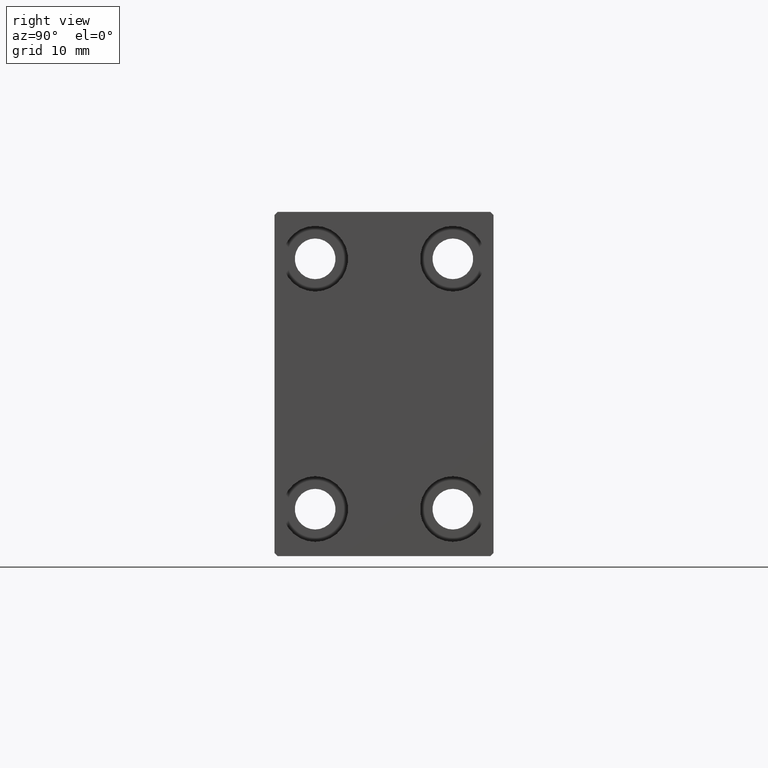
[diagram: clean part render]
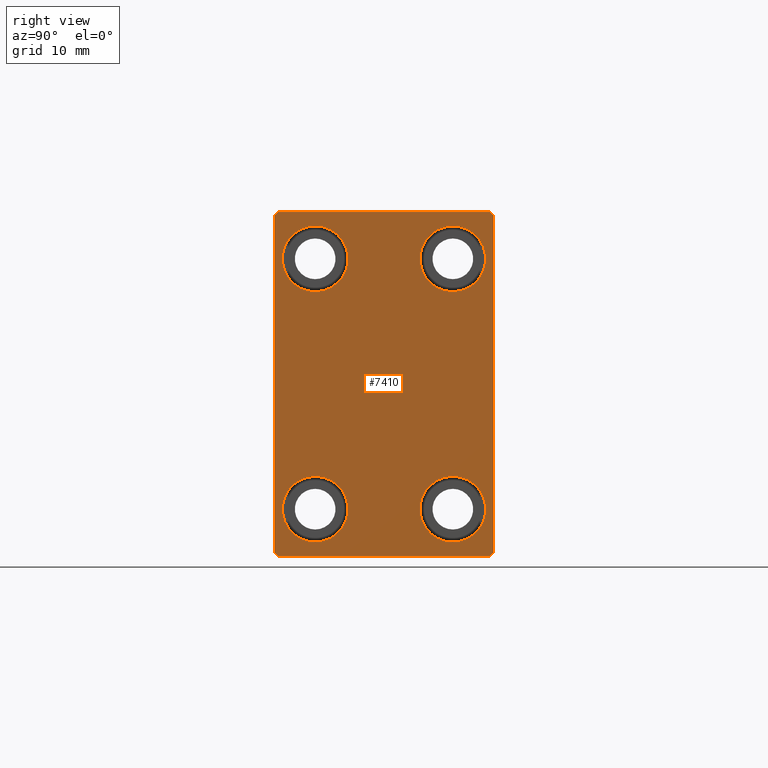
[diagram: same view with one face highlighted and labeled with its STEP entity id]
A machine part, right view. The second image highlights one B-rep face of the part: STEP entity #7410.
In plain terms, the highlighted planar face has unit normal (1, 0, 0).
Its self-contained STEP definition (entity closure, byte-faithful):
#581 = AXIS2_PLACEMENT_3D ( 'NONE', #12450, #6145, #32697 ) ;
#742 = VERTEX_POINT ( 'NONE', #33456 ) ;
#1245 = ORIENTED_EDGE ( 'NONE', *, *, #15140, .T. ) ;
#1577 = DIRECTION ( 'NONE',  ( 0.000000000000000000, -1.000000000000000000, -1.982541115402065110E-16 ) ) ;
#1851 = EDGE_LOOP ( 'NONE', ( #22560, #38156 ) ) ;
#2031 = DIRECTION ( 'NONE',  ( 0.000000000000000000, 0.000000000000000000, 1.000000000000000000 ) ) ;
#2882 = CARTESIAN_POINT ( 'NONE',  ( 76.00000000000000000, -22.24999999999998579, 22.24999999999998579 ) ) ;
#2896 = CARTESIAN_POINT ( 'NONE',  ( 76.00000000000000000, 22.25000000000000711, -22.25000000000000711 ) ) ;
#3148 = CARTESIAN_POINT ( 'NONE',  ( 76.00000000000000000, 0.000000000000000000, 0.000000000000000000 ) ) ;
#4329 = CARTESIAN_POINT ( 'NONE',  ( 76.00000000000000000, 11.00000000000000355, -20.00000000000000000 ) ) ;
#4512 = VERTEX_POINT ( 'NONE', #34431 ) ;
#4542 = CIRCLE ( 'NONE', #22502, 5.250000000000000888 ) ;
#5249 = CARTESIAN_POINT ( 'NONE',  ( 76.00000000000000000, -22.25000000000024869, -22.24999999999963407 ) ) ;
#5958 = CARTESIAN_POINT ( 'NONE',  ( 76.00000000000000000, -11.00000000000000355, 25.25000000000000000 ) ) ;
#6121 = DIRECTION ( 'NONE',  ( -1.000000000000000000, -0.000000000000000000, -0.000000000000000000 ) ) ;
#6145 = DIRECTION ( 'NONE',  ( -1.000000000000000000, -0.000000000000000000, -0.000000000000000000 ) ) ;
#6210 = DIRECTION ( 'NONE',  ( 0.000000000000000000, 0.000000000000000000, 1.000000000000000000 ) ) ;
#6260 = EDGE_CURVE ( 'NONE', #36737, #35418, #19976, .T. ) ;
#6311 = FACE_OUTER_BOUND ( 'NONE', #14705, .T. ) ;
#6479 = VECTOR ( 'NONE', #10065, 1000.000000000000114 ) ;
#6933 = LINE ( 'NONE', #2896, #39582 ) ;
#7137 = LINE ( 'NONE', #27573, #6479 ) ;
#7410 = ADVANCED_FACE ( 'NONE', ( #44101, #33504, #16407, #37106, #6311 ), #19996, .T. ) ;
#7595 = EDGE_CURVE ( 'NONE', #742, #33696, #39997, .T. ) ;
#7803 = DIRECTION ( 'NONE',  ( 0.000000000000000000, 0.000000000000000000, 1.000000000000000000 ) ) ;
#8358 = CARTESIAN_POINT ( 'NONE',  ( 76.00000000000000000, 17.50000000000000711, -27.00000000000000355 ) ) ;
#8472 = DIRECTION ( 'NONE',  ( 0.000000000000000000, -1.261617073437677752E-16, 1.000000000000000000 ) ) ;
#9071 = CIRCLE ( 'NONE', #40662, 5.250000000000000888 ) ;
#9145 = CARTESIAN_POINT ( 'NONE',  ( 76.00000000000000000, 17.50000000000000711, -27.50000000000000355 ) ) ;
#9835 = CARTESIAN_POINT ( 'NONE',  ( 76.00000000000000000, -17.50000000000000000, 27.49999999999999645 ) ) ;
#10065 = DIRECTION ( 'NONE',  ( -0.000000000000000000, -0.7071067811865474617, 0.7071067811865474617 ) ) ;
#10663 = EDGE_CURVE ( 'NONE', #31873, #4512, #18632, .T. ) ;
#11104 = ORIENTED_EDGE ( 'NONE', *, *, #27878, .T. ) ;
#11287 = DIRECTION ( 'NONE',  ( 0.000000000000000000, 0.000000000000000000, 1.000000000000000000 ) ) ;
#11361 = VERTEX_POINT ( 'NONE', #31218 ) ;
#11915 = DIRECTION ( 'NONE',  ( -1.000000000000000000, -0.000000000000000000, -0.000000000000000000 ) ) ;
#11991 = EDGE_LOOP ( 'NONE', ( #20685, #20574 ) ) ;
#12450 = CARTESIAN_POINT ( 'NONE',  ( 76.00000000000000000, -11.00000000000000355, -20.00000000000000000 ) ) ;
#12971 = CARTESIAN_POINT ( 'NONE',  ( 76.00000000000000000, 11.00000000000000355, -14.75000000000000000 ) ) ;
#13107 = VECTOR ( 'NONE', #14651, 1000.000000000000000 ) ;
#13448 = DIRECTION ( 'NONE',  ( -1.000000000000000000, -0.000000000000000000, -0.000000000000000000 ) ) ;
#13770 = DIRECTION ( 'NONE',  ( -1.000000000000000000, -0.000000000000000000, -0.000000000000000000 ) ) ;
#14009 = LINE ( 'NONE', #34266, #15538 ) ;
#14303 = DIRECTION ( 'NONE',  ( 0.000000000000000000, 0.000000000000000000, 1.000000000000000000 ) ) ;
#14651 = DIRECTION ( 'NONE',  ( -0.000000000000000000, 0.7071067811865378028, -0.7071067811865573427 ) ) ;
#14705 = EDGE_LOOP ( 'NONE', ( #44486, #19910, #28485, #22340, #16451, #31156, #11104, #1245 ) ) ;
#14826 = LINE ( 'NONE', #28555, #20526 ) ;
#15140 = EDGE_CURVE ( 'NONE', #32232, #17573, #7137, .T. ) ;
#15538 = VECTOR ( 'NONE', #20750, 1000.000000000000000 ) ;
#15629 = EDGE_LOOP ( 'NONE', ( #21286, #41009 ) ) ;
#15948 = VERTEX_POINT ( 'NONE', #8358 ) ;
#16407 = FACE_BOUND ( 'NONE', #34492, .T. ) ;
#16451 = ORIENTED_EDGE ( 'NONE', *, *, #37401, .T. ) ;
#16551 = CARTESIAN_POINT ( 'NONE',  ( 76.00000000000000000, 11.00000000000000355, -25.25000000000000000 ) ) ;
#17200 = CARTESIAN_POINT ( 'NONE',  ( 76.00000000000000000, 11.00000000000000355, 14.75000000000000000 ) ) ;
#17337 = CARTESIAN_POINT ( 'NONE',  ( 76.00000000000000000, -11.00000000000000355, -14.75000000000000000 ) ) ;
#17573 = VERTEX_POINT ( 'NONE', #41172 ) ;
#17783 = EDGE_CURVE ( 'NONE', #36061, #15948, #6933, .T. ) ;
#18039 = VERTEX_POINT ( 'NONE', #17200 ) ;
#18191 = VECTOR ( 'NONE', #8472, 1000.000000000000000 ) ;
#18632 = CIRCLE ( 'NONE', #20056, 5.250000000000000888 ) ;
#18772 = VERTEX_POINT ( 'NONE', #12971 ) ;
#19809 = DIRECTION ( 'NONE',  ( 0.000000000000000000, 0.000000000000000000, 1.000000000000000000 ) ) ;
#19910 = ORIENTED_EDGE ( 'NONE', *, *, #43440, .T. ) ;
#19934 = EDGE_CURVE ( 'NONE', #18039, #28455, #24614, .T. ) ;
#19976 = CIRCLE ( 'NONE', #581, 5.250000000000000888 ) ;
#19996 = PLANE ( 'NONE',  #32218 ) ;
#20056 = AXIS2_PLACEMENT_3D ( 'NONE', #38295, #41447, #11287 ) ;
#20526 = VECTOR ( 'NONE', #1577, 1000.000000000000000 ) ;
#20574 = ORIENTED_EDGE ( 'NONE', *, *, #29885, .T. ) ;
#20685 = ORIENTED_EDGE ( 'NONE', *, *, #6260, .T. ) ;
#20750 = DIRECTION ( 'NONE',  ( 0.000000000000000000, 1.000000000000000000, 0.000000000000000000 ) ) ;
#20941 = DIRECTION ( 'NONE',  ( 0.000000000000000000, 0.000000000000000000, 1.000000000000000000 ) ) ;
#21286 = ORIENTED_EDGE ( 'NONE', *, *, #42330, .T. ) ;
#21290 = AXIS2_PLACEMENT_3D ( 'NONE', #4329, #13770, #20941 ) ;
#21684 = CIRCLE ( 'NONE', #43289, 5.250000000000000888 ) ;
#21946 = EDGE_CURVE ( 'NONE', #33696, #11361, #36044, .T. ) ;
#22340 = ORIENTED_EDGE ( 'NONE', *, *, #21946, .T. ) ;
#22502 = AXIS2_PLACEMENT_3D ( 'NONE', #26657, #30473, #6210 ) ;
#22560 = ORIENTED_EDGE ( 'NONE', *, *, #26175, .T. ) ;
#22584 = CARTESIAN_POINT ( 'NONE',  ( 76.00000000000000000, -11.00000000000000355, -25.25000000000000000 ) ) ;
#22925 = DIRECTION ( 'NONE',  ( 0.000000000000000000, 0.000000000000000000, -1.000000000000000000 ) ) ;
#23775 = DIRECTION ( 'NONE',  ( -0.000000000000000000, 0.7071067811865474617, 0.7071067811865474617 ) ) ;
#23864 = ORIENTED_EDGE ( 'NONE', *, *, #40408, .T. ) ;
#24234 = CARTESIAN_POINT ( 'NONE',  ( 76.00000000000000000, 17.50000000000000000, 27.00000000000000355 ) ) ;
#24614 = CIRCLE ( 'NONE', #41892, 5.250000000000000888 ) ;
#25787 = CARTESIAN_POINT ( 'NONE',  ( 76.00000000000000000, -16.99999999999998579, 27.49999999999999645 ) ) ;
#26175 = EDGE_CURVE ( 'NONE', #4512, #31873, #21684, .T. ) ;
#26486 = LINE ( 'NONE', #2882, #28498 ) ;
#26657 = CARTESIAN_POINT ( 'NONE',  ( 76.00000000000000000, 11.00000000000000355, -20.00000000000000000 ) ) ;
#27573 = CARTESIAN_POINT ( 'NONE',  ( 76.00000000000000000, 22.25000000000000355, 22.25000000000000355 ) ) ;
#27878 = EDGE_CURVE ( 'NONE', #15948, #32232, #33410, .T. ) ;
#27976 = EDGE_CURVE ( 'NONE', #18772, #30643, #4542, .T. ) ;
#28455 = VERTEX_POINT ( 'NONE', #41338 ) ;
#28485 = ORIENTED_EDGE ( 'NONE', *, *, #7595, .T. ) ;
#28498 = VECTOR ( 'NONE', #33680, 1000.000000000000114 ) ;
#28555 = CARTESIAN_POINT ( 'NONE',  ( 76.00000000000000000, 17.50000000000000000, 27.50000000000000355 ) ) ;
#29781 = ORIENTED_EDGE ( 'NONE', *, *, #19934, .T. ) ;
#29861 = DIRECTION ( 'NONE',  ( 0.000000000000000000, 0.000000000000000000, -1.000000000000000000 ) ) ;
#29885 = EDGE_CURVE ( 'NONE', #35418, #36737, #37633, .T. ) ;
#29899 = CIRCLE ( 'NONE', #21290, 5.250000000000000888 ) ;
#30473 = DIRECTION ( 'NONE',  ( -1.000000000000000000, -0.000000000000000000, -0.000000000000000000 ) ) ;
#30643 = VERTEX_POINT ( 'NONE', #16551 ) ;
#31156 = ORIENTED_EDGE ( 'NONE', *, *, #17783, .T. ) ;
#31218 = CARTESIAN_POINT ( 'NONE',  ( 76.00000000000000000, -17.00000000000001421, -27.50000000000000355 ) ) ;
#31629 = CARTESIAN_POINT ( 'NONE',  ( 76.00000000000000000, 11.00000000000000355, 20.00000000000000000 ) ) ;
#31873 = VERTEX_POINT ( 'NONE', #5958 ) ;
#32218 = AXIS2_PLACEMENT_3D ( 'NONE', #3148, #33720, #22925 ) ;
#32232 = VERTEX_POINT ( 'NONE', #24234 ) ;
#32697 = DIRECTION ( 'NONE',  ( 0.000000000000000000, 0.000000000000000000, 1.000000000000000000 ) ) ;
#32835 = CARTESIAN_POINT ( 'NONE',  ( 76.00000000000000000, -11.00000000000000355, 20.00000000000000000 ) ) ;
#33410 = LINE ( 'NONE', #9145, #18191 ) ;
#33456 = CARTESIAN_POINT ( 'NONE',  ( 76.00000000000000000, -17.50000000000000000, 26.99999999999998224 ) ) ;
#33504 = FACE_BOUND ( 'NONE', #1851, .T. ) ;
#33680 = DIRECTION ( 'NONE',  ( 0.000000000000000000, -0.7071067811865474617, -0.7071067811865474617 ) ) ;
#33696 = VERTEX_POINT ( 'NONE', #38252 ) ;
#33720 = DIRECTION ( 'NONE',  ( 1.000000000000000000, 0.000000000000000000, 0.000000000000000000 ) ) ;
#34266 = CARTESIAN_POINT ( 'NONE',  ( 76.00000000000000000, -17.50000000000000000, -27.50000000000000355 ) ) ;
#34431 = CARTESIAN_POINT ( 'NONE',  ( 76.00000000000000000, -11.00000000000000355, 14.75000000000000000 ) ) ;
#34492 = EDGE_LOOP ( 'NONE', ( #29781, #23864 ) ) ;
#35418 = VERTEX_POINT ( 'NONE', #17337 ) ;
#35458 = CARTESIAN_POINT ( 'NONE',  ( 76.00000000000000000, 11.00000000000000355, 20.00000000000000000 ) ) ;
#36002 = EDGE_CURVE ( 'NONE', #17573, #42678, #14826, .T. ) ;
#36044 = LINE ( 'NONE', #5249, #13107 ) ;
#36061 = VERTEX_POINT ( 'NONE', #42990 ) ;
#36737 = VERTEX_POINT ( 'NONE', #22584 ) ;
#37106 = FACE_BOUND ( 'NONE', #11991, .T. ) ;
#37401 = EDGE_CURVE ( 'NONE', #11361, #36061, #14009, .T. ) ;
#37633 = CIRCLE ( 'NONE', #43416, 5.250000000000000888 ) ;
#37802 = CARTESIAN_POINT ( 'NONE',  ( 76.00000000000000000, -11.00000000000000355, -20.00000000000000000 ) ) ;
#38156 = ORIENTED_EDGE ( 'NONE', *, *, #10663, .T. ) ;
#38252 = CARTESIAN_POINT ( 'NONE',  ( 76.00000000000000000, -17.50000000000000000, -27.00000000000000355 ) ) ;
#38295 = CARTESIAN_POINT ( 'NONE',  ( 76.00000000000000000, -11.00000000000000355, 20.00000000000000000 ) ) ;
#38618 = DIRECTION ( 'NONE',  ( -1.000000000000000000, -0.000000000000000000, -0.000000000000000000 ) ) ;
#39582 = VECTOR ( 'NONE', #23775, 1000.000000000000114 ) ;
#39997 = LINE ( 'NONE', #9835, #40865 ) ;
#40408 = EDGE_CURVE ( 'NONE', #28455, #18039, #9071, .T. ) ;
#40662 = AXIS2_PLACEMENT_3D ( 'NONE', #35458, #38618, #7803 ) ;
#40865 = VECTOR ( 'NONE', #29861, 1000.000000000000000 ) ;
#41009 = ORIENTED_EDGE ( 'NONE', *, *, #27976, .T. ) ;
#41172 = CARTESIAN_POINT ( 'NONE',  ( 76.00000000000000000, 17.00000000000000000, 27.50000000000000355 ) ) ;
#41338 = CARTESIAN_POINT ( 'NONE',  ( 76.00000000000000000, 11.00000000000000355, 25.25000000000000000 ) ) ;
#41447 = DIRECTION ( 'NONE',  ( -1.000000000000000000, -0.000000000000000000, -0.000000000000000000 ) ) ;
#41892 = AXIS2_PLACEMENT_3D ( 'NONE', #31629, #13448, #14303 ) ;
#42330 = EDGE_CURVE ( 'NONE', #30643, #18772, #29899, .T. ) ;
#42678 = VERTEX_POINT ( 'NONE', #25787 ) ;
#42990 = CARTESIAN_POINT ( 'NONE',  ( 76.00000000000000000, 17.00000000000000711, -27.50000000000000355 ) ) ;
#43289 = AXIS2_PLACEMENT_3D ( 'NONE', #32835, #11915, #2031 ) ;
#43416 = AXIS2_PLACEMENT_3D ( 'NONE', #37802, #6121, #19809 ) ;
#43440 = EDGE_CURVE ( 'NONE', #42678, #742, #26486, .T. ) ;
#44101 = FACE_BOUND ( 'NONE', #15629, .T. ) ;
#44486 = ORIENTED_EDGE ( 'NONE', *, *, #36002, .T. ) ;